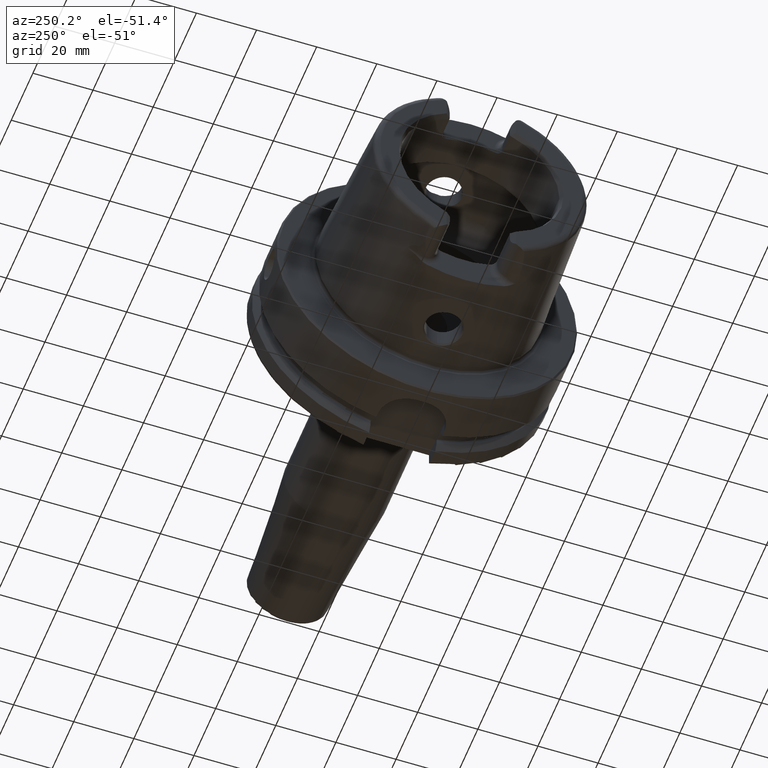
[diagram: clean part render]
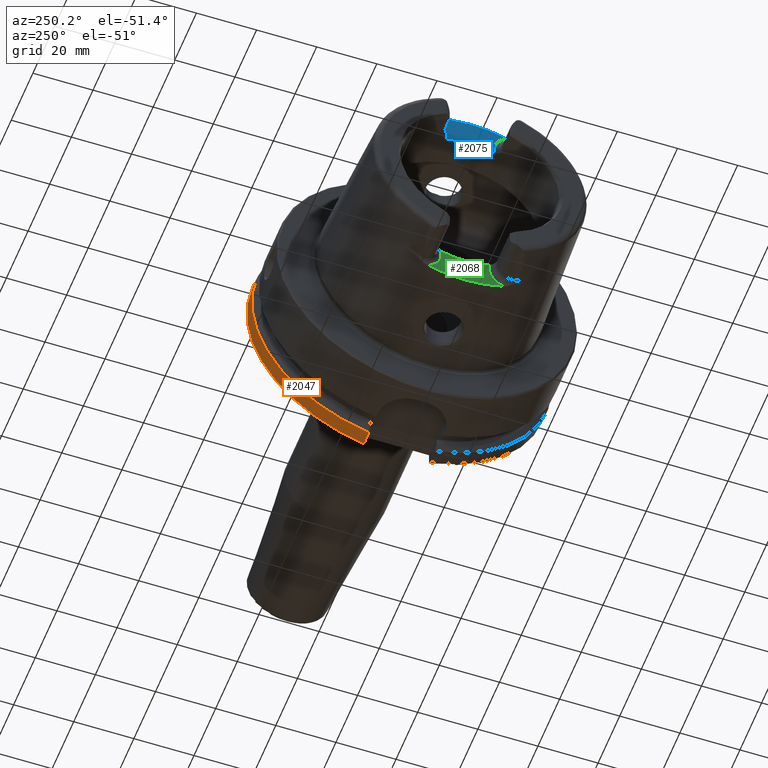
[diagram: same view with three faces highlighted in distinct colors, each labeled with its STEP entity id]
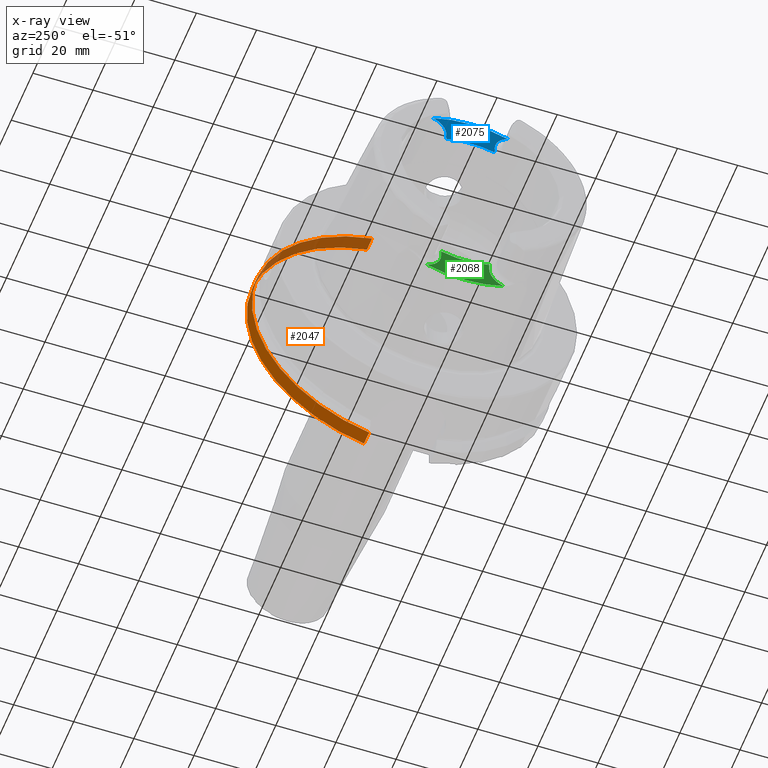
[diagram: x-ray of the same camera — body ghosted, the three highlighted faces saturated]
A machine part, auxiliary view with three faces highlighted in distinct colors.
The next image is the same camera in x-ray (body ghosted, the three faces saturated) — at least one of them is partly hidden behind the body in this view.
Their STEP definitions:

[orange] entity #2047 — the highlighted cylindrical surface (partial cylindrical patch) has radius 50 mm, axis along (1, 0, 0).
#193=CYLINDRICAL_SURFACE('',#2274,50.);
#271=FACE_OUTER_BOUND('',#400,.T.);
#400=EDGE_LOOP('',(#1690,#1691,#1692,#1693));
#532=LINE('',#4205,#638);
#542=LINE('',#4287,#648);
#638=VECTOR('',#2730,10.);
#648=VECTOR('',#2766,10.);
#749=CIRCLE('',#2271,50.);
#751=CIRCLE('',#2275,50.);
#954=VERTEX_POINT('',#4155);
#962=VERTEX_POINT('',#4201);
#974=VERTEX_POINT('',#4270);
#975=VERTEX_POINT('',#4285);
#1220=EDGE_CURVE('',#954,#962,#532,.T.);
#1237=EDGE_CURVE('',#954,#974,#749,.T.);
#1240=EDGE_CURVE('',#962,#975,#751,.T.);
#1241=EDGE_CURVE('',#975,#974,#542,.T.);
#1690=ORIENTED_EDGE('',*,*,#1220,.T.);
#1691=ORIENTED_EDGE('',*,*,#1240,.T.);
#1692=ORIENTED_EDGE('',*,*,#1241,.T.);
#1693=ORIENTED_EDGE('',*,*,#1237,.F.);
#2047=ADVANCED_FACE('',(#271),#193,.T.);
#2271=AXIS2_PLACEMENT_3D('',#4271,#2756,#2757);
#2274=AXIS2_PLACEMENT_3D('',#4284,#2762,#2763);
#2275=AXIS2_PLACEMENT_3D('',#4286,#2764,#2765);
#2730=DIRECTION('',(-1.,0.,0.));
#2756=DIRECTION('center_axis',(1.,0.,0.));
#2757=DIRECTION('ref_axis',(0.,0.,-1.));
#2762=DIRECTION('center_axis',(1.,0.,0.));
#2763=DIRECTION('ref_axis',(0.,1.,0.));
#2764=DIRECTION('center_axis',(1.,0.,0.));
#2765=DIRECTION('ref_axis',(0.,0.,-1.));
#2766=DIRECTION('',(1.,0.,0.));
#4155=CARTESIAN_POINT('',(28.,11.,-48.7749935930288));
#4201=CARTESIAN_POINT('',(23.2620290209214,11.,-48.7749935930288));
#4205=CARTESIAN_POINT('',(25.6310145104607,11.,-48.7749935930288));
#4270=CARTESIAN_POINT('',(28.,10.,48.9897948556636));
#4271=CARTESIAN_POINT('Origin',(28.,0.,0.));
#4284=CARTESIAN_POINT('Origin',(25.6310145104607,0.,0.));
#4285=CARTESIAN_POINT('',(23.2620290209214,10.,48.9897948556636));
#4286=CARTESIAN_POINT('Origin',(23.2620290209214,0.,0.));
#4287=CARTESIAN_POINT('',(25.6310145104607,10.,48.9897948556636));

[blue] entity #2075 — the highlighted planar face has unit normal (-1, 0, 0).
#127=PLANE('',#2326);
#299=FACE_OUTER_BOUND('',#428,.T.);
#428=EDGE_LOOP('',(#1819,#1820,#1821,#1822,#1823,#1824));
#550=LINE('',#4353,#656);
#551=LINE('',#4382,#657);
#656=VECTOR('',#2818,10.);
#657=VECTOR('',#2831,10.);
#718=CIRCLE('',#2213,36.003493987976);
#761=CIRCLE('',#2299,6.88);
#763=CIRCLE('',#2302,6.88);
#775=CIRCLE('',#2327,26.5);
#892=VERTEX_POINT('',#3531);
#893=VERTEX_POINT('',#3548);
#984=VERTEX_POINT('',#4350);
#985=VERTEX_POINT('',#4352);
#986=VERTEX_POINT('',#4367);
#987=VERTEX_POINT('',#4371);
#1124=EDGE_CURVE('',#892,#893,#718,.T.);
#1262=EDGE_CURVE('',#984,#985,#550,.T.);
#1264=EDGE_CURVE('',#893,#984,#761,.T.);
#1266=EDGE_CURVE('',#986,#892,#763,.T.);
#1268=EDGE_CURVE('',#987,#986,#551,.T.);
#1289=EDGE_CURVE('',#985,#987,#775,.T.);
#1819=ORIENTED_EDGE('',*,*,#1264,.F.);
#1820=ORIENTED_EDGE('',*,*,#1124,.F.);
#1821=ORIENTED_EDGE('',*,*,#1266,.F.);
#1822=ORIENTED_EDGE('',*,*,#1268,.F.);
#1823=ORIENTED_EDGE('',*,*,#1289,.F.);
#1824=ORIENTED_EDGE('',*,*,#1262,.F.);
#2075=ADVANCED_FACE('',(#299),#127,.T.);
#2213=AXIS2_PLACEMENT_3D('',#3549,#2599,#2600);
#2299=AXIS2_PLACEMENT_3D('',#4365,#2821,#2822);
#2302=AXIS2_PLACEMENT_3D('',#4369,#2827,#2828);
#2326=AXIS2_PLACEMENT_3D('',#4440,#2883,#2884);
#2327=AXIS2_PLACEMENT_3D('',#4441,#2885,#2886);
#2599=DIRECTION('center_axis',(1.,0.,0.));
#2600=DIRECTION('ref_axis',(0.,1.,0.));
#2818=DIRECTION('',(0.,0.,-1.));
#2821=DIRECTION('center_axis',(-1.,0.,0.));
#2822=DIRECTION('ref_axis',(0.,0.564947834751706,0.82512662301574));
#2827=DIRECTION('center_axis',(-1.,0.,0.));
#2828=DIRECTION('ref_axis',(0.,-0.564947834751705,0.825126623015741));
#2831=DIRECTION('',(0.,0.,1.));
#2883=DIRECTION('center_axis',(-1.,0.,0.));
#2884=DIRECTION('ref_axis',(0.,0.,1.));
#2885=DIRECTION('center_axis',(-1.,0.,0.));
#2886=DIRECTION('ref_axis',(0.,1.,0.));
#3531=CARTESIAN_POINT('',(-40.,12.4227760464511,33.7923987701664));
#3548=CARTESIAN_POINT('',(-40.,-12.4227760464511,33.7923987701664));
#3549=CARTESIAN_POINT('Origin',(-40.,0.,0.));
#4350=CARTESIAN_POINT('',(-40.,-8.01,27.37));
#4352=CARTESIAN_POINT('',(-40.,-8.01,25.2604414054862));
#4353=CARTESIAN_POINT('',(-40.,-8.01,23.5));
#4365=CARTESIAN_POINT('Origin',(-40.,-14.89,27.37));
#4367=CARTESIAN_POINT('',(-40.,8.01,27.37));
#4369=CARTESIAN_POINT('Origin',(-40.,14.89,27.37));
#4371=CARTESIAN_POINT('',(-40.,8.01,25.2604414054862));
#4382=CARTESIAN_POINT('',(-40.,8.01,28.185));
#4440=CARTESIAN_POINT('Origin',(-40.,0.,29.));
#4441=CARTESIAN_POINT('Origin',(-40.,0.,0.));

[green] entity #2068 — the highlighted planar face has unit normal (-1, 0, 0).
#124=PLANE('',#2314);
#292=FACE_OUTER_BOUND('',#421,.T.);
#421=EDGE_LOOP('',(#1791,#1792,#1793,#1794,#1795,#1796));
#552=LINE('',#4404,#658);
#555=LINE('',#4416,#661);
#658=VECTOR('',#2844,10.);
#661=VECTOR('',#2859,10.);
#716=CIRCLE('',#2211,36.25399498998);
#767=CIRCLE('',#2308,6.88);
#770=CIRCLE('',#2315,26.5);
#771=CIRCLE('',#2316,6.88);
#888=VERTEX_POINT('',#3480);
#889=VERTEX_POINT('',#3491);
#990=VERTEX_POINT('',#4388);
#992=VERTEX_POINT('',#4393);
#994=VERTEX_POINT('',#4413);
#995=VERTEX_POINT('',#4415);
#1118=EDGE_CURVE('',#888,#889,#716,.T.);
#1272=EDGE_CURVE('',#990,#888,#767,.T.);
#1274=EDGE_CURVE('',#992,#990,#552,.T.);
#1279=EDGE_CURVE('',#994,#992,#770,.T.);
#1280=EDGE_CURVE('',#995,#994,#555,.T.);
#1281=EDGE_CURVE('',#889,#995,#771,.T.);
#1791=ORIENTED_EDGE('',*,*,#1272,.F.);
#1792=ORIENTED_EDGE('',*,*,#1274,.F.);
#1793=ORIENTED_EDGE('',*,*,#1279,.F.);
#1794=ORIENTED_EDGE('',*,*,#1280,.F.);
#1795=ORIENTED_EDGE('',*,*,#1281,.F.);
#1796=ORIENTED_EDGE('',*,*,#1118,.F.);
#2068=ADVANCED_FACE('',(#292),#124,.T.);
#2211=AXIS2_PLACEMENT_3D('',#3492,#2595,#2596);
#2308=AXIS2_PLACEMENT_3D('',#4390,#2840,#2841);
#2314=AXIS2_PLACEMENT_3D('',#4412,#2855,#2856);
#2315=AXIS2_PLACEMENT_3D('',#4414,#2857,#2858);
#2316=AXIS2_PLACEMENT_3D('',#4417,#2860,#2861);
#2595=DIRECTION('center_axis',(1.,0.,0.));
#2596=DIRECTION('ref_axis',(0.,1.,0.));
#2840=DIRECTION('center_axis',(-1.,0.,0.));
#2841=DIRECTION('ref_axis',(0.,0.510937901715381,-0.8596176246394));
#2844=DIRECTION('',(0.,0.,-1.));
#2855=DIRECTION('center_axis',(-1.,0.,0.));
#2856=DIRECTION('ref_axis',(0.,0.,1.));
#2857=DIRECTION('center_axis',(-1.,0.,0.));
#2858=DIRECTION('ref_axis',(0.,1.,0.));
#2859=DIRECTION('',(0.,0.,1.));
#2860=DIRECTION('center_axis',(-1.,0.,0.));
#2861=DIRECTION('ref_axis',(0.,-0.510937901715381,-0.8596176246394));
#3480=CARTESIAN_POINT('',(-35.,-12.7918651267415,-33.9222690767105));
#3491=CARTESIAN_POINT('',(-35.,12.7918651267415,-33.9222690767105));
#3492=CARTESIAN_POINT('Origin',(-35.,0.,0.));
#4388=CARTESIAN_POINT('',(-35.,-8.01,-27.37));
#4390=CARTESIAN_POINT('Origin',(-35.,-14.89,-27.37));
#4393=CARTESIAN_POINT('',(-35.,-8.01,-25.2604414054862));
#4404=CARTESIAN_POINT('',(-35.,-8.01,-28.685));
#4412=CARTESIAN_POINT('Origin',(-35.,8.88178419700125E-15,-30.));
#4413=CARTESIAN_POINT('',(-35.,8.01,-25.2604414054862));
#4414=CARTESIAN_POINT('Origin',(-35.,0.,0.));
#4415=CARTESIAN_POINT('',(-35.,8.01,-27.37));
#4416=CARTESIAN_POINT('',(-35.,8.01,-25.));
#4417=CARTESIAN_POINT('Origin',(-35.,14.89,-27.37));